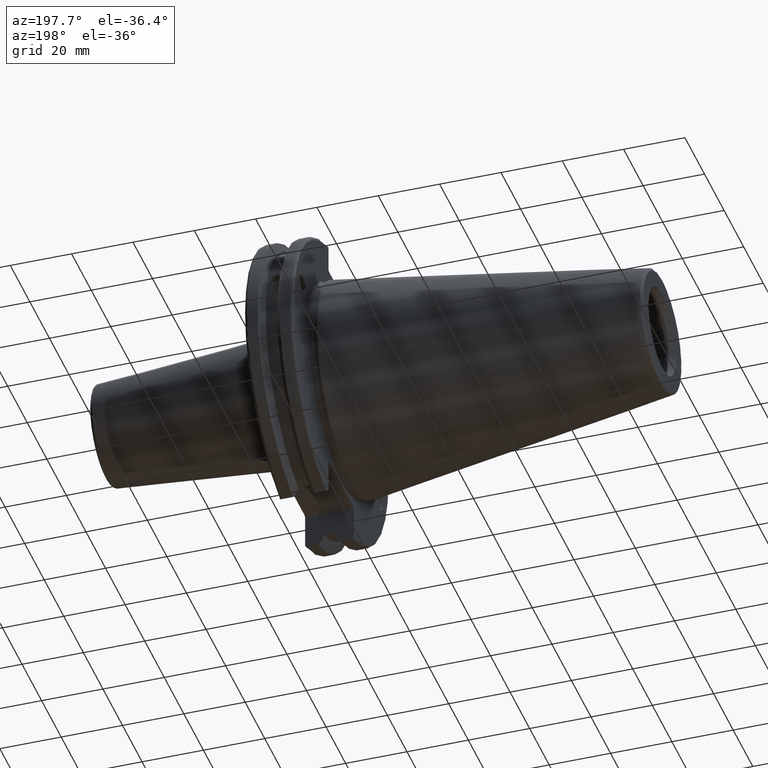
[diagram: clean part render]
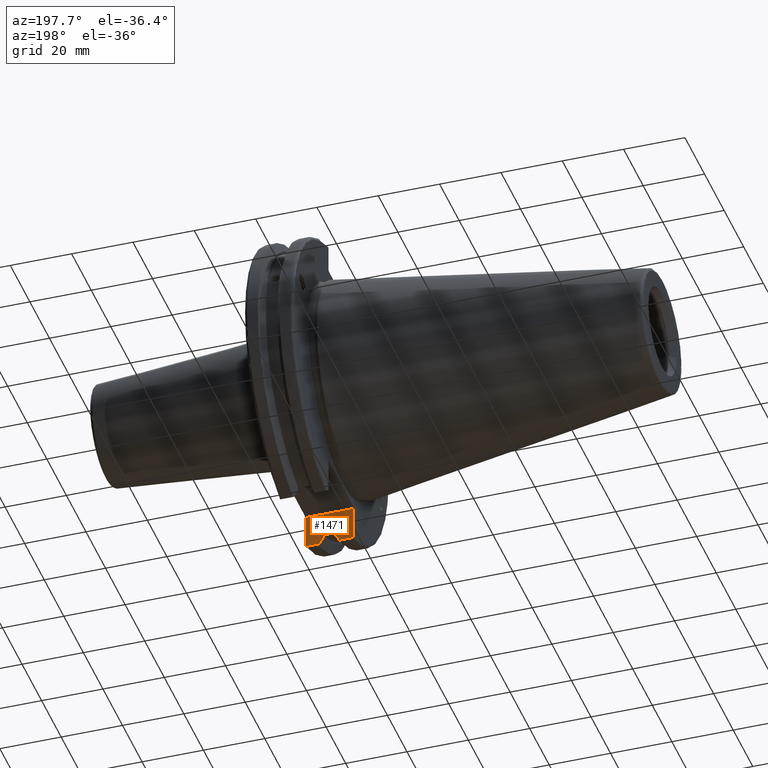
[diagram: same view with one face highlighted and labeled with its STEP entity id]
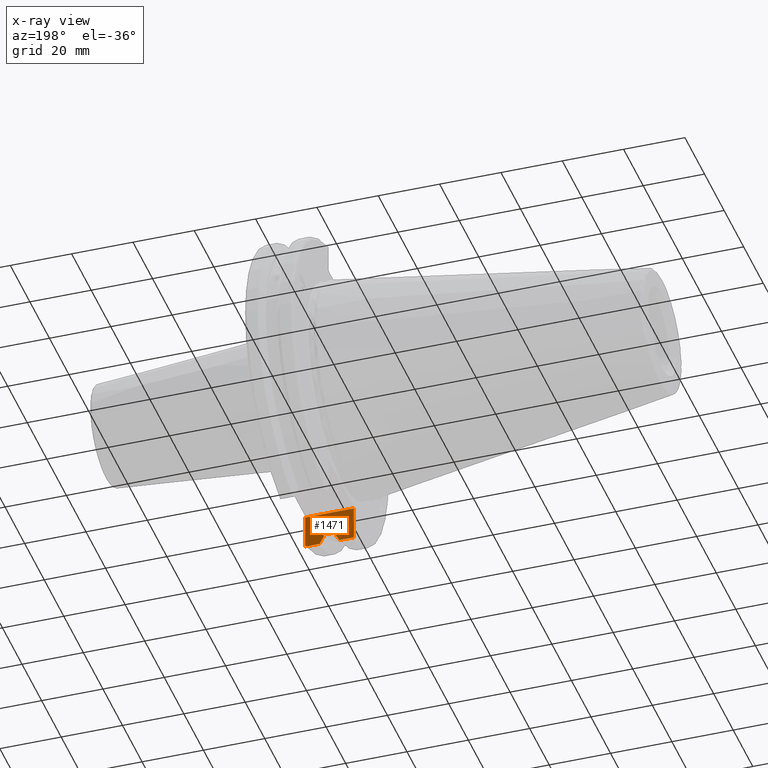
[diagram: x-ray of the same camera — body ghosted, the highlighted face saturated]
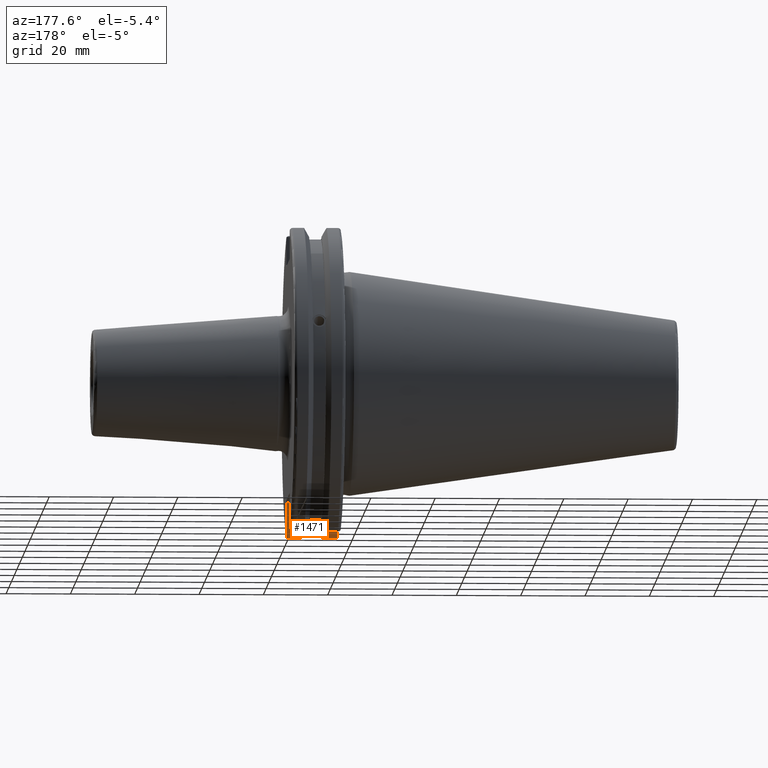
[diagram: same view with one face highlighted and labeled with its STEP entity id]
A machine part, auxiliary view. The second image highlights one B-rep face of the part: STEP entity #1471.
The next image is the same camera in x-ray: the body ghosted, the highlighted face saturated — about 0% of this face is hidden behind the body in this view.
A second angle (auxiliary view) of the same face is appended — the face is thin or edge-on in the first view.
In plain terms, the highlighted planar face has unit normal (0, -1, 0).
Its self-contained STEP definition (entity closure, byte-faithful):
#15=(
BOUNDED_CURVE()
B_SPLINE_CURVE(2,(#2460,#2461,#2462),.UNSPECIFIED.,.F.,.F.)
B_SPLINE_CURVE_WITH_KNOTS((3,3),(0.,0.275823910673374),.UNSPECIFIED.)
CURVE()
GEOMETRIC_REPRESENTATION_ITEM()
RATIONAL_B_SPLINE_CURVE((1.,1.00038235574978,1.00012873636953))
REPRESENTATION_ITEM('')
);
#26=(
BOUNDED_CURVE()
B_SPLINE_CURVE(2,(#2865,#2866,#2867),.UNSPECIFIED.,.F.,.F.)
B_SPLINE_CURVE_WITH_KNOTS((3,3),(0.0558332664507492,0.331657177124507),
 .UNSPECIFIED.)
CURVE()
GEOMETRIC_REPRESENTATION_ITEM()
RATIONAL_B_SPLINE_CURVE((1.00012873636807,1.00038235574544,1.))
REPRESENTATION_ITEM('')
);
#60=B_SPLINE_CURVE_WITH_KNOTS('',3,(#2809,#2810,#2811,#2812,#2813,#2814),
 .UNSPECIFIED.,.F.,.F.,(4,2,4),(0.097707143645253,0.112358403262293,0.150882178076498),
 .UNSPECIFIED.);
#65=B_SPLINE_CURVE_WITH_KNOTS('',3,(#2870,#2871,#2872,#2873,#2874,#2875),
 .UNSPECIFIED.,.F.,.F.,(4,2,4),(0.452859340315922,0.491741138916218,0.506051994111223),
 .UNSPECIFIED.);
#91=LINE('',#2157,#181);
#110=LINE('',#2481,#200);
#111=LINE('',#2485,#201);
#112=LINE('',#2489,#202);
#135=LINE('',#2747,#225);
#147=LINE('',#2863,#237);
#148=LINE('',#2869,#238);
#149=LINE('',#2876,#239);
#181=VECTOR('',#1750,10.);
#200=VECTOR('',#1835,10.);
#201=VECTOR('',#1840,10.);
#202=VECTOR('',#1845,10.);
#225=VECTOR('',#1932,10.);
#237=VECTOR('',#1964,10.);
#238=VECTOR('',#1965,10.);
#239=VECTOR('',#1966,10.);
#325=PLANE('',#1634);
#392=FACE_OUTER_BOUND('',#493,.T.);
#493=EDGE_LOOP('',(#1237,#1238,#1239,#1240,#1241,#1242,#1243,#1244,#1245,
#1246,#1247,#1248));
#626=VERTEX_POINT('',#2154);
#627=VERTEX_POINT('',#2156);
#662=VERTEX_POINT('',#2457);
#663=VERTEX_POINT('',#2459);
#668=VERTEX_POINT('',#2479);
#669=VERTEX_POINT('',#2483);
#670=VERTEX_POINT('',#2487);
#704=VERTEX_POINT('',#2725);
#714=VERTEX_POINT('',#2745);
#723=VERTEX_POINT('',#2808);
#732=VERTEX_POINT('',#2864);
#733=VERTEX_POINT('',#2868);
#780=EDGE_CURVE('',#626,#627,#91,.T.);
#826=EDGE_CURVE('',#662,#663,#15,.T.);
#833=EDGE_CURVE('',#668,#662,#110,.T.);
#835=EDGE_CURVE('',#669,#668,#111,.T.);
#837=EDGE_CURVE('',#670,#669,#112,.T.);
#891=EDGE_CURVE('',#714,#704,#135,.T.);
#906=EDGE_CURVE('',#723,#626,#60,.T.);
#919=EDGE_CURVE('',#663,#723,#147,.T.);
#920=EDGE_CURVE('',#732,#670,#26,.T.);
#921=EDGE_CURVE('',#733,#732,#148,.T.);
#922=EDGE_CURVE('',#704,#733,#65,.T.);
#923=EDGE_CURVE('',#627,#714,#149,.T.);
#1237=ORIENTED_EDGE('',*,*,#906,.F.);
#1238=ORIENTED_EDGE('',*,*,#919,.F.);
#1239=ORIENTED_EDGE('',*,*,#826,.F.);
#1240=ORIENTED_EDGE('',*,*,#833,.F.);
#1241=ORIENTED_EDGE('',*,*,#835,.F.);
#1242=ORIENTED_EDGE('',*,*,#837,.F.);
#1243=ORIENTED_EDGE('',*,*,#920,.F.);
#1244=ORIENTED_EDGE('',*,*,#921,.F.);
#1245=ORIENTED_EDGE('',*,*,#922,.F.);
#1246=ORIENTED_EDGE('',*,*,#891,.F.);
#1247=ORIENTED_EDGE('',*,*,#923,.F.);
#1248=ORIENTED_EDGE('',*,*,#780,.F.);
#1471=ADVANCED_FACE('',(#392),#325,.F.);
#1634=AXIS2_PLACEMENT_3D('',#2862,#1962,#1963);
#1750=DIRECTION('',(0.,0.,1.));
#1835=DIRECTION('',(0.,0.,-1.));
#1840=DIRECTION('',(1.,0.,0.));
#1845=DIRECTION('',(0.,0.,1.));
#1932=DIRECTION('',(0.,0.,-1.));
#1962=DIRECTION('center_axis',(2.63163976207445E-16,-1.,0.));
#1963=DIRECTION('ref_axis',(-1.,-2.63163976207445E-16,0.));
#1964=DIRECTION('',(1.,2.63163976207445E-16,0.));
#1965=DIRECTION('',(1.,2.63163976207445E-16,0.));
#1966=DIRECTION('',(-1.,-2.63163976207445E-16,0.));
#2154=CARTESIAN_POINT('',(19.05,-12.95,-46.4407434937254));
#2156=CARTESIAN_POINT('',(19.05,-12.95,-35.806));
#2157=CARTESIAN_POINT('',(19.05,-12.95,-17.653));
#2457=CARTESIAN_POINT('',(13.0491,-12.95,-44.5791147973604));
#2459=CARTESIAN_POINT('',(14.3818103943757,-12.95,-46.9780755322917));
#2460=CARTESIAN_POINT('Ctrl Pts',(13.0491,-12.95,-44.5791147973604));
#2461=CARTESIAN_POINT('Ctrl Pts',(13.697995509466,-12.95,-45.749496680259));
#2462=CARTESIAN_POINT('Ctrl Pts',(14.3818103943757,-12.95,-46.9780755322917));
#2479=CARTESIAN_POINT('',(13.0491,-12.95,-43.7678716897452));
#2481=CARTESIAN_POINT('',(13.0491,-12.95,-17.653));
#2483=CARTESIAN_POINT('',(9.2191,-12.95,-43.7678716897452));
#2485=CARTESIAN_POINT('',(11.1341,-12.95,-43.7678716897452));
#2487=CARTESIAN_POINT('',(9.2191,-12.95,-44.5791147973604));
#2489=CARTESIAN_POINT('',(9.2191,-12.95,-17.653));
#2725=CARTESIAN_POINT('',(3.175,-12.95,-46.4407434937254));
#2745=CARTESIAN_POINT('',(3.175,-12.95,-35.806));
#2747=CARTESIAN_POINT('',(3.175,-12.95,-17.653));
#2808=CARTESIAN_POINT('',(18.9055020570566,-12.95,-46.9780755322917));
#2809=CARTESIAN_POINT('Ctrl Pts',(18.9055020570566,-12.95,-46.9780755322917));
#2810=CARTESIAN_POINT('Ctrl Pts',(18.9322353702005,-12.95,-46.9322596399785));
#2811=CARTESIAN_POINT('Ctrl Pts',(18.9549831813775,-12.95,-46.8849952622217));
#2812=CARTESIAN_POINT('Ctrl Pts',(19.0209992543299,-12.95,-46.7204975987179));
#2813=CARTESIAN_POINT('Ctrl Pts',(19.05,-12.95,-46.5691560764394));
#2814=CARTESIAN_POINT('Ctrl Pts',(19.05,-12.95,-46.4407434937254));
#2862=CARTESIAN_POINT('Origin',(20.05,-12.95,-35.306));
#2863=CARTESIAN_POINT('',(16.8551045170244,-12.95,-46.9780755322917));
#2864=CARTESIAN_POINT('',(7.88638960562425,-12.95,-46.9780755322918));
#2865=CARTESIAN_POINT('Ctrl Pts',(7.88638960562425,-12.95,-46.9780755322918));
#2866=CARTESIAN_POINT('Ctrl Pts',(8.57020449054166,-12.95,-45.7494966802452));
#2867=CARTESIAN_POINT('Ctrl Pts',(9.2191,-12.95,-44.5791147973604));
#2868=CARTESIAN_POINT('',(3.31949794294343,-12.95,-46.9780755322917));
#2869=CARTESIAN_POINT('',(5.39149548297563,-12.95,-46.9780755322917));
#2870=CARTESIAN_POINT('Ctrl Pts',(3.175,-12.95,-46.4407434937254));
#2871=CARTESIAN_POINT('Ctrl Pts',(3.175,-12.95,-46.5703494890597));
#2872=CARTESIAN_POINT('Ctrl Pts',(3.20453530071253,-12.95,-46.7230464903732));
#2873=CARTESIAN_POINT('Ctrl Pts',(3.27115672912336,-12.95,-46.887363294568));
#2874=CARTESIAN_POINT('Ctrl Pts',(3.29341556483838,-12.95,-46.9333752207329));
#2875=CARTESIAN_POINT('Ctrl Pts',(3.31949794294343,-12.95,-46.9780755322917));
#2876=CARTESIAN_POINT('',(19.06875,-12.95,-35.806));